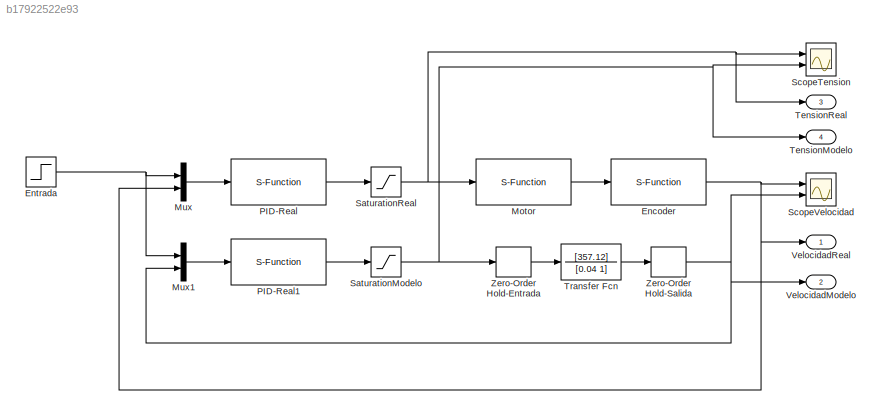
MODEL slx_b17922522e93
KIND model
CONFIG AbsTol = auto
CONFIG FixedStep = auto
CONFIG MaxStep = auto
CONFIG MinStep = auto
CONFIG RelTol = 1e-3
CONFIG SampleTimeConstraint = Unconstrained
CONFIG Solver = VariableStepAuto
CONFIG SolverMode = Auto
CONFIG SolverName = VariableStepAuto
CONFIG StartTime = 0.0
CONFIG StopTime = 0.25
BLOCK [S-Function] Encoder
  EnableBusSupport = off
  FunctionName = encoder_a_rpm
  Parameters = 0.00001, 0.005,150
  Ports = [1, 1]
  SFunctionDeploymentMode = off
BLOCK [Step] Entrada
  After = 4000
  SampleTime = 0
  Time = 0
BLOCK [S-Function] Motor
  EnableBusSupport = off
  FunctionName = dcmotor_qenc
  Parameters = 150
  Ports = [1, 1]
  SFunctionDeploymentMode = off
BLOCK [Mux] Mux
  DisplayOption = bar
  Inputs = 2
  Ports = [2, 1]
BLOCK [Mux] Mux1
  DisplayOption = bar
  Inputs = 2
  Ports = [2, 1]
BLOCK [S-Function] PID-Real
  EnableBusSupport = off
  FunctionName = pid_sfun
  Parameters = 0.005 25 0.5 0.005 10
  Ports = [1, 1]
  SFunctionDeploymentMode = off
BLOCK [S-Function] PID-Real1
  EnableBusSupport = off
  FunctionName = pid_sfun
  Parameters = 0.007 25 0.5 0.005 10
  Ports = [1, 1]
  SFunctionDeploymentMode = off
BLOCK [Saturate] SaturationModelo 
  InputPortMap = u0
  LowerLimit = -30
  Ports = [1, 1]
  UpperLimit = 30
BLOCK [Saturate] SaturationReal
  InputPortMap = u0
  LowerLimit = -30
  Ports = [1, 1]
  UpperLimit = 30
BLOCK [Scope] ScopeTension
  NumInputPorts = 2
  Ports = [2]
  ScopeSpecificationString = Simulink.scopes.TimeScopeBlockCfg('CurrentConfiguration', extmgr.ConfigurationSet(extmgr.Configuration('Core','General UI',true),extmgr.Configuration('Core','Source UI',true),extmgr.Configuration('Sources','WiredSimulink',true,'DataLoggingVariableName','ScopeData1'),extmgr.Configuration('Visuals','Time Domain',true,'SerializedDisplays',{struct('MinYLimReal','8.01695','MaxYLimReal','30.22034','YLab...<+1450ch>
BLOCK [Scope] ScopeVelocidad
  NumInputPorts = 2
  Ports = [2]
  ScopeSpecificationString = Simulink.scopes.TimeScopeBlockCfg('CurrentConfiguration', extmgr.ConfigurationSet(extmgr.Configuration('Core','General UI',true),extmgr.Configuration('Core','Source UI',true),extmgr.Configuration('Sources','WiredSimulink',true),extmgr.Configuration('Visuals','Time Domain',true,'SerializedDisplays',{struct('MinYLimReal','-500.00000','MaxYLimReal','4500.00000','YLabelReal','','MinYLimMag',' 0.00000'...<+1443ch>
BLOCK [Outport] TensionModelo
  IconDisplay = Port number
  Port = 4
BLOCK [Outport] TensionReal
  IconDisplay = Port number
  Port = 3
BLOCK [TransferFcn] Transfer Fcn
  Denominator = [0.04 1]
  Numerator = [357.12]
BLOCK [Outport] VelocidadModelo 
  IconDisplay = Port number
  Port = 2
BLOCK [Outport] VelocidadReal
  IconDisplay = Port number
BLOCK [ZeroOrderHold] Zero-Order Hold-Entrada
  SampleTime = 0.005
BLOCK [ZeroOrderHold] Zero-Order Hold-Salida
  SampleTime = 0.005
NET Encoder:1 -> Mux:2, ScopeVelocidad:1, VelocidadReal:1
NET Entrada:1 -> Mux1:1, Mux:1
LINE Motor:1 -> Encoder:1
LINE Mux1:1 -> PID-Real1:1
LINE Mux:1 -> PID-Real:1
LINE PID-Real1:1 -> SaturationModelo :1
LINE PID-Real:1 -> SaturationReal:1
NET SaturationModelo :1 -> ScopeTension:2, TensionModelo:1, Zero-Order Hold-Entrada:1
NET SaturationReal:1 -> Motor:1, ScopeTension:1, TensionReal:1
LINE Transfer Fcn:1 -> Zero-Order Hold-Salida:1
LINE Zero-Order Hold-Entrada:1 -> Transfer Fcn:1
NET Zero-Order Hold-Salida:1 -> Mux1:2, ScopeVelocidad:2, VelocidadModelo :1
note: NET lines group one-source signal fan-out (src -> all destinations, sorted); 1:1 wires keep LINE
